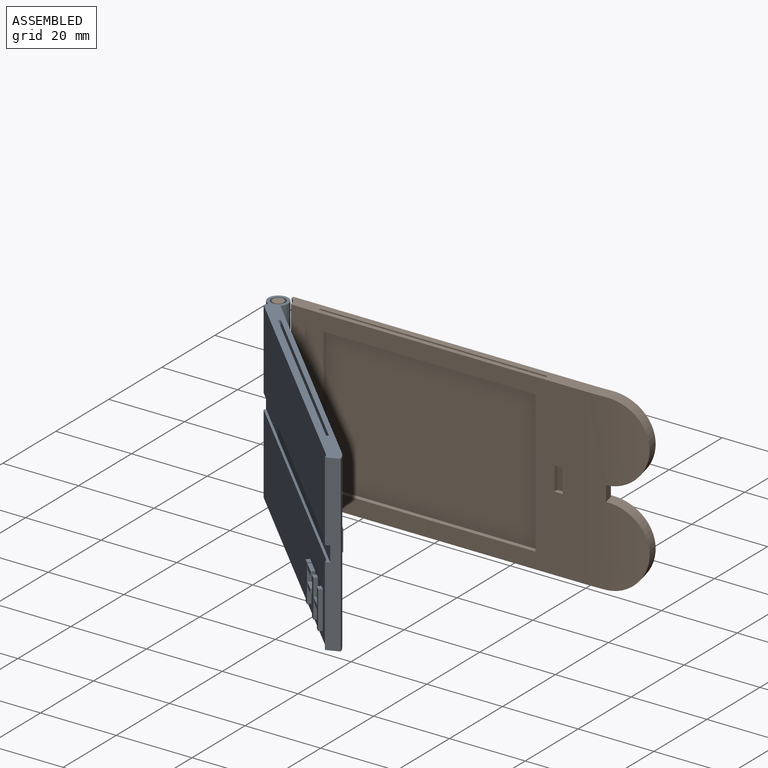
[diagram: assembled view]
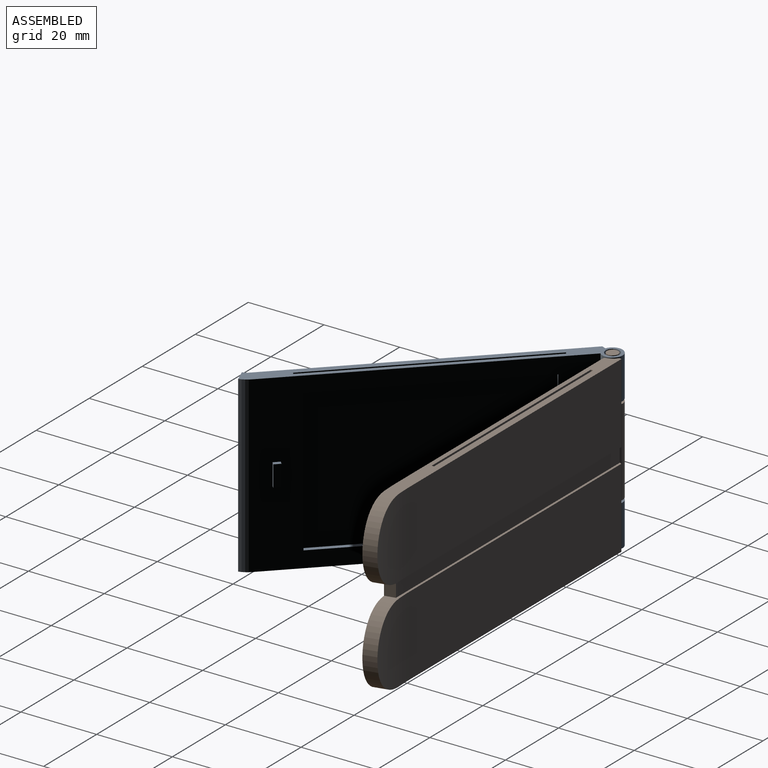
[diagram: assembled view, second angle]
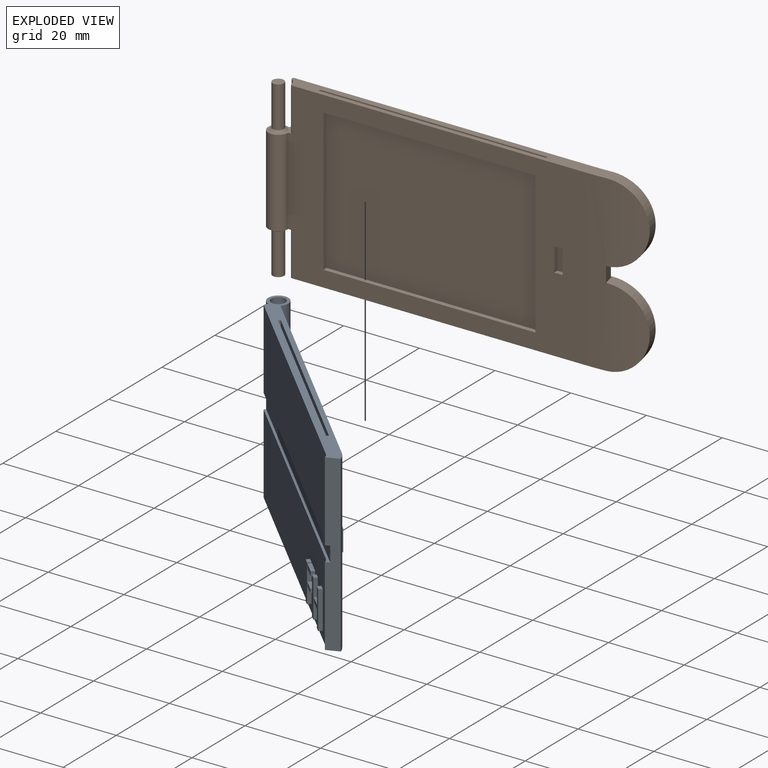
[diagram: exploded view]
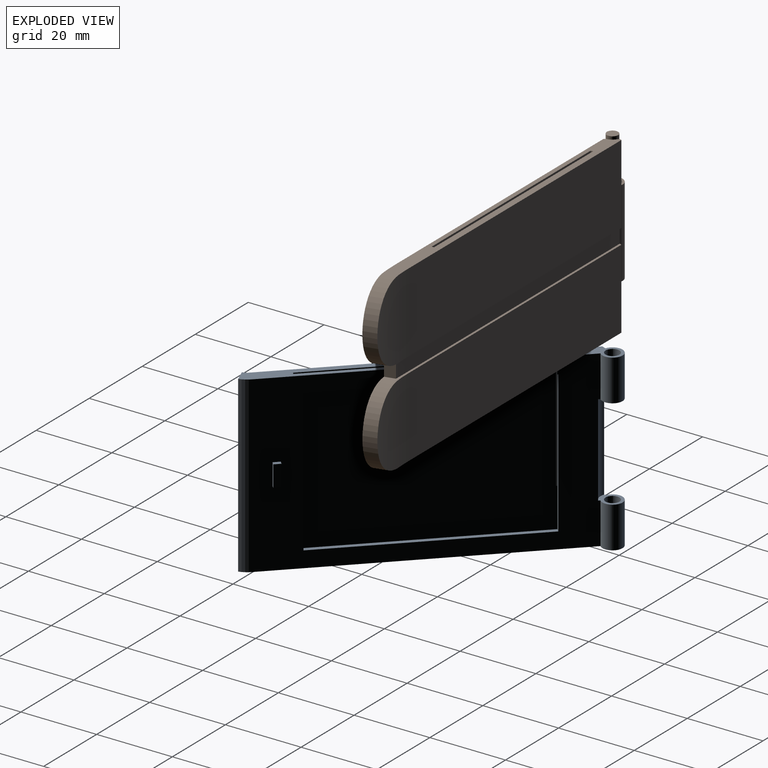
[diagram: exploded view, second angle]
ASSEMBLY  parts=2 mates=2
PART A: 63 faces, bbox 84.8x7.2x46 mm
  f0: plane 84.77x6.65mm, normal (0,0,1), area 253.9mm2, adj f1,f2,f3,f5,f7,f10,f11,f12
  f1: plane 76.5x46mm, normal (0,-1,0), area 1396.7mm2, adj f0,f4,f7,f12,f13,f14,f15,f16
  f2: plane 77.52x21mm, normal (0,1,0), area 1627.8mm2, adj f0,f3,f5,f18
  f3: cylinder r=2.76mm len=21mm, axis (0,0,-1), area 35.5mm2, adj f0,f2,f10,f18
  f4: cylinder r=2.65mm len=10.9mm, axis (0,0,-1), area 148.7mm2, adj f1,f5,f13,f15
  f5: plane 46x1.1mm, normal (0.91,0.42,0), area 41mm2, adj f0,f2,f4,f7,f8,f13,f14,f15
  f6: cylinder r=1.85mm len=10.9mm, axis (0,0,-1), area 126.7mm2, adj f13,f15
  f7: cylinder r=2.65mm len=10.9mm, axis (0,0,-1), area 148.7mm2, adj f0,f1,f5,f16
  f8: plane 77.52x21mm, normal (0,1,0), area 1565.3mm2, adj f5,f9,f13,f17,f34,f35,f36,f37
  f9: cylinder r=2.76mm len=21mm, axis (0,0,-1), area 35.5mm2, adj f8,f10,f13,f17
  f10: plane 46x3.25mm, normal (-0.92,0.39,0), area 157.8mm2, adj f0,f3,f9,f12,f13,f17,f18,f19
  f11: cylinder r=1.85mm len=10.9mm, axis (0,0,-1), area 126.7mm2, adj f0,f16
  f12: cylinder r=6.26mm len=46mm, axis (0,0,-1), area 142.2mm2, adj f0,f1,f10,f13
  f13: plane 84.77x6.65mm, normal (0,0,-1), area 289.9mm2, adj f1,f4,f5,f6,f8,f9,f10,f12
  f14: cylinder r=3.15mm len=24.2mm, axis (0,0,1), area 86.4mm2, adj f1,f5,f15,f16
  f15: plane 5.8x5.5mm, normal (0,0,1), area 13mm2, adj f1,f4,f5,f6,f14
  f16: plane 5.8x5.5mm, normal (0,0,-1), area 13mm2, adj f1,f5,f7,f11,f14
  f17: plane 79.85x1.1mm, normal (0,0,1), area 48.1mm2, adj f5,f8,f9,f10,f19
  f18: plane 79.85x1.1mm, normal (0,0,-1), area 48.1mm2, adj f2,f3,f5,f10,f19
  f19: plane 79.85x4mm, normal (0,1,0), area 319.4mm2, adj f5,f10,f17,f18
  f20: plane 43.75x0.6mm, normal (-1,0,0), area 26.3mm2, adj f0,f22,f23,f24
  f21: plane 43.75x0.6mm, normal (1,0,0), area 26.3mm2, adj f0,f22,f23,f24
  f22: plane 60x0.6mm, normal (0,0,1), area 36mm2, adj f20,f21,f23,f24
  f23: plane 60x43.75mm, normal (0,-1,0), area 2625mm2, adj f0,f20,f21,f22
  f24: plane 60x43.75mm, normal (0,1,0), area 525mm2, adj f0,f20,f21,f22,f25,f26,f27,f28
  f25: plane 56x1.2mm, normal (0,0,-1), area 67.2mm2, adj f1,f24,f26,f27
  f26: plane 37.5x1.2mm, normal (1,0,0), area 45mm2, adj f1,f24,f25,f28
  f27: plane 37.5x1.2mm, normal (-1,0,0), area 45mm2, adj f1,f24,f25,f28
  f28: plane 56x1.2mm, normal (0,0,1), area 67.2mm2, adj f1,f24,f26,f27
  f29: plane 1.8x1.1mm, normal (0,0,1), area 2mm2, adj f1,f30,f32,f33
  f30: plane 5.7x1.1mm, normal (-1,0,0), area 6.3mm2, adj f1,f29,f31,f33
  f31: plane 1.8x1.1mm, normal (0,0,-1), area 2mm2, adj f1,f30,f32,f33
  f32: plane 5.7x1.1mm, normal (1,0,0), area 6.3mm2, adj f1,f29,f31,f33
  f33: plane 5.7x1.8mm, normal (0,-1,0), area 10.3mm2, adj f29,f30,f31,f32
  f34: plane 1.65x1mm, normal (0,0,1), area 1.7mm2, adj f8,f35,f37,f38
  f35: plane 10x1mm, normal (1,0,0), area 10mm2, adj f8,f34,f36,f38
  f36: plane 1.65x1mm, normal (0,0,-1), area 1.7mm2, adj f8,f35,f37,f38
  f37: plane 10x1mm, normal (-1,0,0), area 10mm2, adj f8,f34,f36,f38
  f38: plane 10x1.65mm, normal (0,1,0), area 16.5mm2, adj f34,f35,f36,f37
  f39: plane 3.62x1mm, normal (0,0,-1), area 3.6mm2, adj f8,f40,f42,f43
  f40: plane 1.11x1mm, normal (-1,0,0), area 1.1mm2, adj f8,f39,f41,f43
  f41: plane 3.62x1mm, normal (0,0,1), area 3.6mm2, adj f8,f40,f42,f43
  f42: plane 1.11x1mm, normal (1,0,0), area 1.1mm2, adj f8,f39,f41,f43
  f43: plane 3.62x1.11mm, normal (0,1,0), area 4mm2, adj f39,f40,f41,f42
  f44: plane 1.23x1mm, normal (-1,0,0), area 1.2mm2, adj f8,f45,f47,f48
  f45: plane 4.04x1mm, normal (0,0,1), area 4mm2, adj f8,f44,f46,f48
  f46: plane 1.23x1mm, normal (1,0,0), area 1.2mm2, adj f8,f45,f47,f48
  f47: plane 4.04x1mm, normal (0,0,-1), area 4mm2, adj f8,f44,f46,f48
  f48: plane 4.04x1.23mm, normal (0,1,0), area 5mm2, adj f44,f45,f46,f47
  f49: plane 10x1mm, normal (-1,0,0), area 10mm2, adj f8,f50,f56,f57
  f50: plane 1.63x1mm, normal (0,0,1), area 1.6mm2, adj f8,f49,f51,f57
  f51: plane 4.38x1mm, normal (1,0,0), area 4.4mm2, adj f8,f50,f52,f57
  f52: plane 3.77x1mm, normal (0,0,1), area 3.8mm2, adj f8,f51,f53,f57
  f53: plane 1.11x1mm, normal (1,0,0), area 1.1mm2, adj f8,f52,f54,f57
  f54: plane 3.77x1mm, normal (0,0,-1), area 3.8mm2, adj f8,f53,f55,f57
  f55: plane 4.5x1mm, normal (1,0,0), area 4.5mm2, adj f8,f54,f56,f57
  f56: plane 1.63x1mm, normal (0,0,-1), area 1.6mm2, adj f8,f49,f55,f57
  f57: plane 10x5.4mm, normal (0,1,0), area 20.5mm2, adj f49,f50,f51,f52,f53,f54,f55,f56
  f58: plane 1.65x1mm, normal (0,0,1), area 1.7mm2, adj f8,f59,f61,f62
  f59: plane 10x1mm, normal (1,0,0), area 10mm2, adj f8,f58,f60,f62
  f60: plane 1.65x1mm, normal (0,0,-1), area 1.7mm2, adj f8,f59,f61,f62
  f61: plane 10x1mm, normal (-1,0,0), area 10mm2, adj f8,f58,f60,f62
  f62: plane 10x1.65mm, normal (0,1,0), area 16.5mm2, adj f58,f59,f60,f61
PART B: 44 faces, bbox 99.5x8.6x46 mm
  f0: plane 78.85x46mm, normal (0,-1,0), area 1491.3mm2, adj f1,f4,f5,f13,f14,f15,f29,f30
  f1: plane 84.96x3.63mm, normal (0,0,1), area 256.6mm2, adj f0,f3,f4,f6,f8,f16,f23,f24
  f2: cylinder r=64.78mm len=21mm, axis (0,0,-1), area 261.3mm2, adj f5,f7,f19,f21
  f3: cylinder r=64.78mm len=21mm, axis (0,0,-1), area 261.3mm2, adj f1,f8,f20,f23
  f4: cylinder r=68.28mm len=46mm, axis (0,0,-1), area 575.7mm2, adj f0,f1,f5,f21,f22,f23
  f5: plane 84.96x3.63mm, normal (0,0,-1), area 292.6mm2, adj f0,f2,f4,f6,f7,f17,f21,f38
  f6: plane 46x1.1mm, normal (-0.91,0.42,0), area 30.9mm2, adj f1,f5,f7,f8,f13,f14,f15,f18
  f7: plane 79.87x21mm, normal (0,1,0), area 1677.2mm2, adj f2,f5,f6,f19
  f8: plane 79.87x21mm, normal (0,1,0), area 1677.2mm2, adj f1,f3,f6,f20
  f9: plane 3x3mm, normal (0,0,-1), area 7.1mm2, adj f11
  f10: plane 3x3mm, normal (0,0,1), area 7.1mm2, adj f12
  f11: cylinder r=1.5mm len=10.9mm, axis (0,0,-1), area 102.7mm2, adj f9,f42
  f12: cylinder r=1.5mm len=10.9mm, axis (0,0,-1), area 102.7mm2, adj f10,f43
  f13: cylinder r=2.65mm len=23mm, axis (0,0,-1), area 313.9mm2, adj f0,f6,f14,f15
  f14: plane 6.27x5.93mm, normal (0,0,1), area 9.9mm2, adj f0,f6,f13,f16,f40,f41,f43
  f15: plane 6.27x5.93mm, normal (0,0,-1), area 9.9mm2, adj f0,f6,f13,f17,f38,f39,f42
  f16: cylinder r=3.15mm len=11.5mm, axis (0,0,-1), area 31.1mm2, adj f1,f14,f40,f41
  f17: cylinder r=3.15mm len=11.5mm, axis (0,0,1), area 31.1mm2, adj f5,f15,f38,f39
  f18: plane 84.46x4mm, normal (0,1,0), area 337.9mm2, adj f6,f19,f20,f22
  f19: plane 84.46x0.73mm, normal (0,0,1), area 50.7mm2, adj f2,f6,f7,f18,f21
  f20: plane 84.46x0.73mm, normal (0,0,-1), area 50.7mm2, adj f3,f6,f8,f18,f23
  f21: cylinder r=10.5mm len=21mm, axis (-0.22,0.97,0), area 115.8mm2, adj f2,f4,f5,f19,f22
  f22: plane 4x2.72mm, normal (0.97,0.22,0), area 11.2mm2, adj f4,f18,f21,f23
  f23: cylinder r=10.5mm len=21mm, axis (-0.22,0.97,0), area 115.8mm2, adj f1,f3,f4,f20,f22
  f24: plane 43.75x0.6mm, normal (1,0,0), area 26.2mm2, adj f1,f25,f27,f28
  f25: plane 60x0.6mm, normal (0,0,1), area 36mm2, adj f24,f26,f27,f28
  f26: plane 43.75x0.6mm, normal (-1,0,0), area 26.2mm2, adj f1,f25,f27,f28
  f27: plane 60x43.75mm, normal (0,-1,0), area 2625mm2, adj f1,f24,f25,f26
  f28: plane 60x43.75mm, normal (0,1,0), area 525mm2, adj f1,f24,f25,f26,f29,f30,f31,f32
  f29: plane 56x1.2mm, normal (0,0,1), area 67.2mm2, adj f0,f28,f30,f32
  f30: plane 37.5x1.2mm, normal (1,0,0), area 45mm2, adj f0,f28,f29,f31
  f31: plane 56x1.2mm, normal (0,0,-1), area 67.2mm2, adj f0,f28,f30,f32
  f32: plane 37.5x1.2mm, normal (-1,0,0), area 45mm2, adj f0,f28,f29,f31
  f33: plane 2.2x1.2mm, normal (0,0,-1), area 2.6mm2, adj f0,f34,f36,f37
  f34: plane 6.2x1.2mm, normal (1,0,0), area 7.4mm2, adj f0,f33,f35,f37
  f35: plane 2.2x1.2mm, normal (0,0,1), area 2.6mm2, adj f0,f34,f36,f37
  f36: plane 6.2x1.2mm, normal (-1,0,0), area 7.4mm2, adj f0,f33,f35,f37
  f37: plane 6.2x2.2mm, normal (0,-1,0), area 13.6mm2, adj f33,f34,f35,f36
  f38: cylinder r=0.5mm len=11.5mm, axis (0,0,1), area 8.2mm2, adj f5,f6,f15,f17
  f39: cylinder r=0.5mm len=11.5mm, axis (0,0,1), area 8.2mm2, adj f0,f5,f15,f17
  f40: cylinder r=0.5mm len=11.5mm, axis (0,0,-1), area 8.2mm2, adj f1,f6,f14,f16
  f41: cylinder r=0.5mm len=11.5mm, axis (0,0,-1), area 8.2mm2, adj f0,f1,f14,f16
  f42: cone r=2.1mm half-angle=45deg, axis (0,0,1), area 9.6mm2, adj f11,f15
  f43: cone r=1.5mm half-angle=45deg, axis (0,0,-1), area 9.6mm2, adj f12,f14
PLACE A rot(axis=(0,0,1),135deg) t=(-1.24,-2.99,0)mm
PLACE B at identity fixed
MATE cylindrical A.f6 <-> B.f11  axis (0,0,1) through (0,-1.75,23)mm
MATE planar A.f0 <-> B.f1  axis (0,0,1) through (-0.9,-4.24,23)mm
